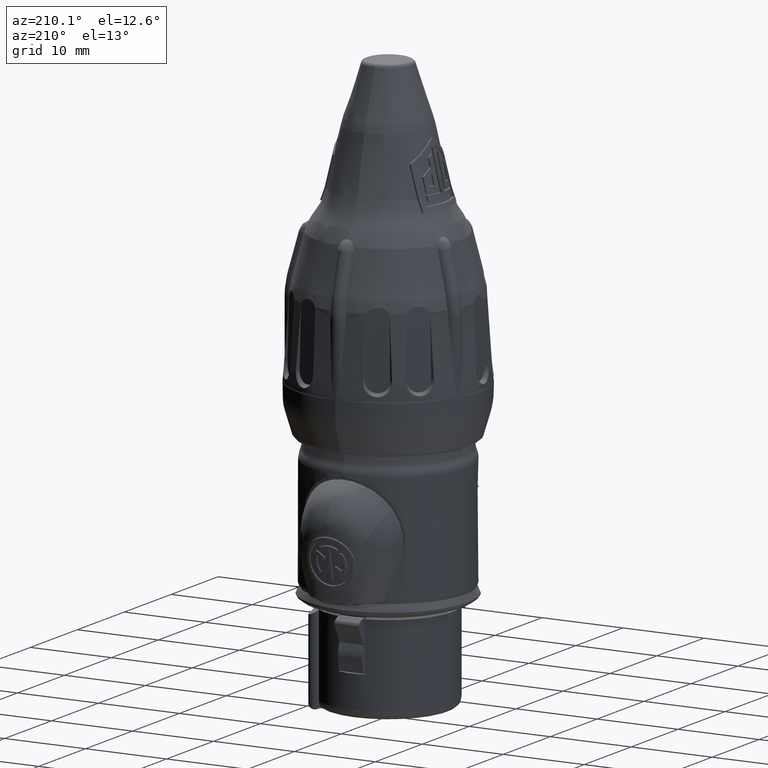
[diagram: clean part render]
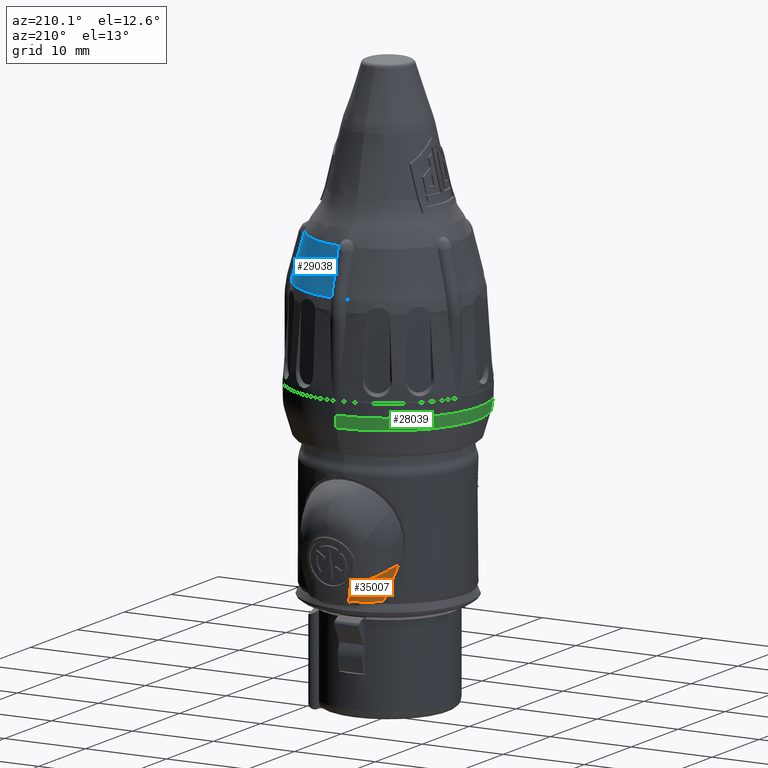
[diagram: same view with three faces highlighted in distinct colors, each labeled with its STEP entity id]
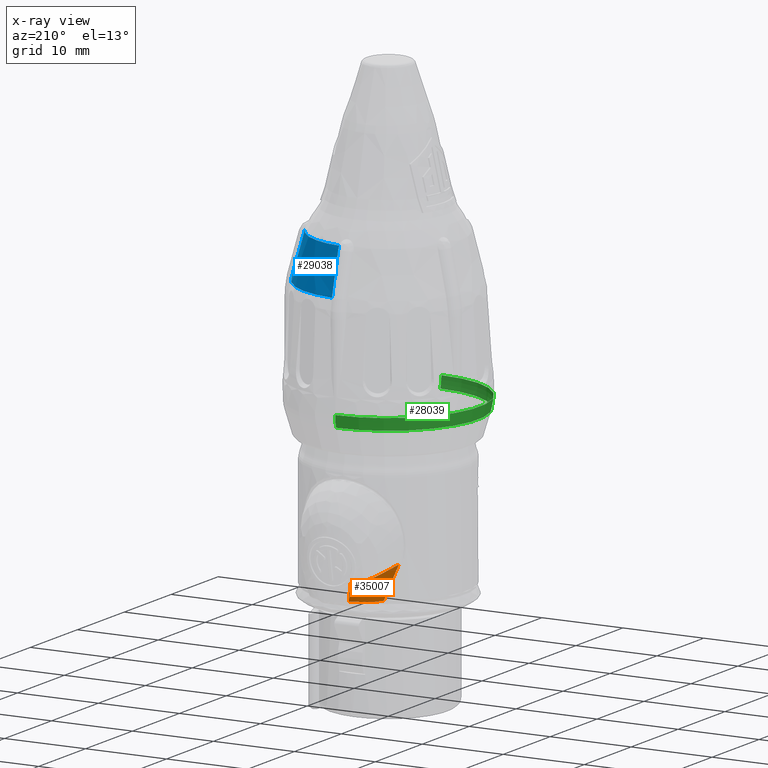
[diagram: x-ray of the same camera — body ghosted, the three highlighted faces saturated]
A machine part, auxiliary view with three faces highlighted in distinct colors.
The next image is the same camera in x-ray (body ghosted, the three faces saturated) — at least one of them is partly hidden behind the body in this view.
Their STEP definitions:

[orange] entity #35007 — the highlighted face is a freeform B-spline surface patch.
#7571=CARTESIAN_POINT('',(-2.232352095925E0,1.187332596422E1,1.796214173332E0));
#7572=CARTESIAN_POINT('',(-2.150181072386E0,1.175705846073E1,1.062305106821E0));
#7573=CARTESIAN_POINT('',(-2.013458731808E0,1.165193932856E1,
3.322874712741E-1));
#7574=CARTESIAN_POINT('',(-1.823413686203E0,1.155397892468E1,
-3.836756787546E-1));
#8485=CARTESIAN_POINT('',(-4.473584168137E0,8.676825806224E0,
-5.161988940454E-1));
#8486=CARTESIAN_POINT('',(-4.472106972484E0,8.681907731398E0,
-5.155038308908E-1));
#8487=CARTESIAN_POINT('',(-4.469098251372E0,8.692117747848E0,
-5.142094253873E-1));
#8488=CARTESIAN_POINT('',(-4.464423676651E0,8.707581358301E0,
-5.125396990245E-1));
#8489=CARTESIAN_POINT('',(-4.461210287261E0,8.717962729783E0,
-5.116026477347E-1));
#8490=CARTESIAN_POINT('',(-4.459579242911E0,8.723173353559E0,
-5.111764139087E-1));
#8492=CARTESIAN_POINT('',(-4.443867990135E0,8.771992840800E0,
-5.081866340088E-1));
#8493=CARTESIAN_POINT('',(-4.445697315311E0,8.766590090868E0,
-5.082874726563E-1));
#8494=CARTESIAN_POINT('',(-4.449301831056E0,8.755770268351E0,
-5.086386254434E-1));
#8495=CARTESIAN_POINT('',(-4.454541504566E0,8.739497716921E0,
-5.096272251677E-1));
#8496=CARTESIAN_POINT('',(-4.457919902777E0,8.728619591622E0,
-5.106048688289E-1));
#8497=CARTESIAN_POINT('',(-4.459579242911E0,8.723173353559E0,
-5.111764139087E-1));
#8499=CARTESIAN_POINT('',(-4.443867990135E0,8.771992840800E0,
-5.081866340088E-1));
#8500=CARTESIAN_POINT('',(-4.405451070784E0,8.885453919760E0,
-5.060688940932E-1));
#8501=CARTESIAN_POINT('',(-4.331639966487E0,9.097800481262E0,
-5.010728945938E-1));
#8502=CARTESIAN_POINT('',(-4.227834860043E0,9.377849434998E0,
-4.919911206103E-1));
#8503=CARTESIAN_POINT('',(-4.130027842512E0,9.622138616068E0,
-4.820243813424E-1));
#8504=CARTESIAN_POINT('',(-4.037440117702E0,9.834221413635E0,
-4.716762494617E-1));
#8505=CARTESIAN_POINT('',(-3.949320893159E0,1.001835273093E1,
-4.612171233858E-1));
#8506=CARTESIAN_POINT('',(-3.863286321121E0,1.018174458222E1,
-4.506251045381E-1));
#8507=CARTESIAN_POINT('',(-3.777789244912E0,1.032877070456E1,
-4.398512625249E-1));
#8508=CARTESIAN_POINT('',(-3.691317157532E0,1.046304499328E1,
-4.287599626615E-1));
#8509=CARTESIAN_POINT('',(-3.601774051005E0,1.058814146062E1,
-4.170853191553E-1));
#8510=CARTESIAN_POINT('',(-3.508183496496E0,1.070514105683E1,
-4.046764283396E-1));
#8511=CARTESIAN_POINT('',(-3.412441445252E0,1.081191769904E1,
-3.917470781908E-1));
#8512=CARTESIAN_POINT('',(-3.314818421230E0,1.090909018066E1,
-3.783350530038E-1));
#8513=CARTESIAN_POINT('',(-3.212911331720E0,1.099951739244E1,
-3.641424161045E-1));
#8514=CARTESIAN_POINT('',(-3.103887019455E0,1.108534254523E1,
-3.488339623992E-1));
#8515=CARTESIAN_POINT('',(-2.986156927069E0,1.116688502995E1,
-3.324109538488E-1));
#8516=CARTESIAN_POINT('',(-2.860664260439E0,1.124274028677E1,
-3.153424298732E-1));
#8517=CARTESIAN_POINT('',(-2.727532686873E0,1.131243368576E1,
-2.982361984828E-1));
#8518=CARTESIAN_POINT('',(-2.633160559639E0,1.135479705600E1,
-2.872339562649E-1));
#8519=CARTESIAN_POINT('',(-2.584554902692E0,1.137489371538E1,
-2.819790099958E-1));
#8521=CARTESIAN_POINT('',(-2.359082717980E0,1.145368894177E1,
-2.766534675386E-1));
#8522=CARTESIAN_POINT('',(-2.367515377804E0,1.145124838011E1,
-2.761115004451E-1));
#8523=CARTESIAN_POINT('',(-2.384375444768E0,1.144626162543E1,
-2.752015843666E-1));
#8524=CARTESIAN_POINT('',(-2.409637796215E0,1.143846319331E1,
-2.743497157179E-1));
#8525=CARTESIAN_POINT('',(-2.434857471462E0,1.143034624306E1,
-2.740015867662E-1));
#8526=CARTESIAN_POINT('',(-2.460021069911E0,1.142191047701E1,
-2.741472982483E-1));
#8527=CARTESIAN_POINT('',(-2.485115610968E0,1.141315580182E1,
-2.747764993792E-1));
#8528=CARTESIAN_POINT('',(-2.510128293301E0,1.140408243672E1,
-2.758784235483E-1));
#8529=CARTESIAN_POINT('',(-2.535048625697E0,1.139469008557E1,
-2.774419011958E-1));
#8530=CARTESIAN_POINT('',(-2.559860519310E0,1.138498097811E1,
-2.794552767833E-1));
#8531=CARTESIAN_POINT('',(-2.576336056595E0,1.137829193288E1,
-2.810905000889E-1));
#8532=CARTESIAN_POINT('',(-2.584554902692E0,1.137489371538E1,
-2.819790099958E-1));
#8534=CARTESIAN_POINT('',(-1.823413686203E0,1.155397892468E1,
-3.836756787546E-1));
#8535=CARTESIAN_POINT('',(-1.845327884264E0,1.155199302422E1,
-3.754472455804E-1));
#8536=CARTESIAN_POINT('',(-1.889619731643E0,1.154750036837E1,
-3.600014593932E-1));
#8537=CARTESIAN_POINT('',(-1.957607597151E0,1.153901616223E1,
-3.394137239284E-1));
#8538=CARTESIAN_POINT('',(-2.025935561020E0,1.152885104432E1,
-3.219166769668E-1));
#8539=CARTESIAN_POINT('',(-2.093871700042E0,1.151705507585E1,
-3.075374622954E-1));
#8540=CARTESIAN_POINT('',(-2.161368572843E0,1.150365081596E1,
-2.959166949184E-1));
#8541=CARTESIAN_POINT('',(-2.228480869385E0,1.148858964099E1,
-2.868786298870E-1));
#8542=CARTESIAN_POINT('',(-2.294573387205E0,1.147198067742E1,
-2.803954574847E-1));
#8543=CARTESIAN_POINT('',(-2.337733858831E0,1.145994332737E1,
-2.776569794972E-1));
#8544=CARTESIAN_POINT('',(-2.359082717980E0,1.145368894177E1,
-2.766534675386E-1));
#8546=CARTESIAN_POINT('',(-5.831870433377E0,7.811297015115E0,3.434612587413E0));
#8547=CARTESIAN_POINT('',(-5.629441890731E0,8.390169566334E0,3.287413632984E0));
#8548=CARTESIAN_POINT('',(-5.236899603121E0,9.434095053581E0,2.958968040027E0));
#8549=CARTESIAN_POINT('',(-4.548737412342E0,1.064431852347E1,2.451985334527E0));
#8550=CARTESIAN_POINT('',(-3.614259157840E0,1.148357860262E1,2.025810897548E0));
#8551=CARTESIAN_POINT('',(-2.742728321069E0,1.178695708824E1,1.849659807152E0));
#8552=CARTESIAN_POINT('',(-2.232352095925E0,1.187332596422E1,1.796214173332E0));
#8554=CARTESIAN_POINT('',(-4.473584168137E0,8.676825806224E0,
-5.161988940454E-1));
#8555=CARTESIAN_POINT('',(-4.505536474405E0,8.660025998109E0,
-4.434686524261E-1));
#8556=CARTESIAN_POINT('',(-4.571455032091E0,8.624906706021E0,
-2.916064316684E-1));
#8557=CARTESIAN_POINT('',(-4.675328535209E0,8.567976834819E0,
-4.557457320979E-2));
#8558=CARTESIAN_POINT('',(-4.784924878353E0,8.506131322672E0,
2.221596195819E-1));
#8559=CARTESIAN_POINT('',(-4.899630154423E0,8.439398139077E0,
5.122005094939E-1));
#8560=CARTESIAN_POINT('',(-5.019312734137E0,8.367406369662E0,
8.264904236870E-1));
#8561=CARTESIAN_POINT('',(-5.143906851273E0,8.289930092966E0,1.167856656004E0));
#8562=CARTESIAN_POINT('',(-5.273340064931E0,8.206640054458E0,1.539822330452E0));
#8563=CARTESIAN_POINT('',(-5.402534877895E0,8.120510706685E0,1.931802761002E0));
#8564=CARTESIAN_POINT('',(-5.518884067368E0,8.040264649390E0,2.305402263607E0));
#8565=CARTESIAN_POINT('',(-5.618251935526E0,7.969649705326E0,2.641850318698E0));
#8566=CARTESIAN_POINT('',(-5.703781208115E0,7.907343647134E0,2.946281000409E0));
#8567=CARTESIAN_POINT('',(-5.775467245383E0,7.854046705474E0,3.213833765743E0));
#8568=CARTESIAN_POINT('',(-5.814385801862E0,7.824608941153E0,3.365390933734E0));
#8569=CARTESIAN_POINT('',(-5.831870433377E0,7.811297015115E0,3.434612587413E0));
#18302=VERTEX_POINT('',#8546);
#18303=VERTEX_POINT('',#8552);
#18339=VERTEX_POINT('',#8485);
#18340=VERTEX_POINT('',#8490);
#18343=VERTEX_POINT('',#8499);
#18344=VERTEX_POINT('',#8519);
#18345=VERTEX_POINT('',#7574);
#18717=VERTEX_POINT('',#8521);
#34957=CARTESIAN_POINT('',(-1.749970098483E0,1.151781793303E1,
-6.499938453895E-1));
#34958=CARTESIAN_POINT('',(-1.887068212164E0,1.158270235860E1,
-1.693979747936E-1));
#34959=CARTESIAN_POINT('',(-2.004009999030E0,1.165028290799E1,
3.165788624434E-1));
#34960=CARTESIAN_POINT('',(-2.100795459195E0,1.172055958155E1,
8.079366659792E-1));
#34961=CARTESIAN_POINT('',(-2.176895394201E0,1.179491402644E1,
1.301146116473E0));
#34962=CARTESIAN_POINT('',(-2.232309803910E0,1.187334624247E1,
1.796207212694E0));
#34963=CARTESIAN_POINT('',(-2.846757564875E0,1.131091857104E1,
-8.757463279028E-1));
#34964=CARTESIAN_POINT('',(-3.093496497564E0,1.135999708644E1,
-3.222655102758E-1));
#34965=CARTESIAN_POINT('',(-3.320044407232E0,1.141167602917E1,
2.394716208536E-1));
#34966=CARTESIAN_POINT('',(-3.526401294019E0,1.146595539958E1,
8.094650651298E-1));
#34967=CARTESIAN_POINT('',(-3.710147160677E0,1.152739814161E1,
1.385584352407E0));
#34968=CARTESIAN_POINT('',(-3.871282006807E0,1.159600425508E1,
1.967829481238E0));
#34969=CARTESIAN_POINT('',(-3.570908524538E0,1.082743057864E1,
-8.961066937924E-1));
#34970=CARTESIAN_POINT('',(-3.881995764163E0,1.081139829551E1,
-2.490684063590E-1));
#34971=CARTESIAN_POINT('',(-4.168917233177E0,1.079406487350E1,
4.076224015499E-1));
#34972=CARTESIAN_POINT('',(-4.431672931985E0,1.077543031293E1,
1.073965729561E0));
#34973=CARTESIAN_POINT('',(-4.668004489745E0,1.076346395661E1,
1.748429972272E0));
#34974=CARTESIAN_POINT('',(-4.877911905935E0,1.075816580458E1,
2.431015127990E0));
#34975=CARTESIAN_POINT('',(-3.978221667724E0,1.004055545730E1,
-7.425169854021E-1));
#34976=CARTESIAN_POINT('',(-4.315273508214E0,9.916453164419E0,
1.411725909326E-2));
#34977=CARTESIAN_POINT('',(-4.620905257243E0,9.783858373387E0,
7.805332382341E-1));
#34978=CARTESIAN_POINT('',(-4.895116915690E0,9.642771084469E0,
1.556730951625E0));
#34979=CARTESIAN_POINT('',(-5.137557285460E0,9.504791638803E0,
2.341125718589E0));
#34980=CARTESIAN_POINT('',(-5.348226366030E0,9.369920036723E0,
3.133717537156E0));
#34981=CARTESIAN_POINT('',(-4.435984797187E0,8.721320558376E0,-6.5E-1));
#34982=CARTESIAN_POINT('',(-4.808000586355E0,8.497448053037E0,
1.894874837963E-1));
#34983=CARTESIAN_POINT('',(-5.143361960867E0,8.258699869494E0,
1.039102866927E0));
#34984=CARTESIAN_POINT('',(-5.442068922010E0,8.005076007937E0,
1.898846148994E0));
#34985=CARTESIAN_POINT('',(-5.705110155574E0,7.751817859227E0,
2.767521449771E0));
#34986=CARTESIAN_POINT('',(-5.932485660993E0,7.498925423993E0,
3.645128767077E0));
#34987=CARTESIAN_POINT('',(-5.E0,6.842925178606E0,-6.5E-1));
#34988=CARTESIAN_POINT('',(-5.422888333036E0,6.533928425026E0,
2.409635538177E-1));
#34989=CARTESIAN_POINT('',(-5.806568454592E0,6.204997108128E0,
1.142830283131E0));
#34990=CARTESIAN_POINT('',(-6.151040366261E0,5.856131228027E0,
2.055600187561E0));
#34991=CARTESIAN_POINT('',(-6.457758448131E0,5.506222771670E0,
2.979056117799E0));
#34992=CARTESIAN_POINT('',(-6.726722699534E0,5.155271739929E0,
3.913198071525E0));
#34993=B_SPLINE_SURFACE_WITH_KNOTS('',5,5,((#34957,#34958,#34959,#34960,#34961,
#34962),(#34963,#34964,#34965,#34966,#34967,#34968),(#34969,#34970,#34971,
#34972,#34973,#34974),(#34975,#34976,#34977,#34978,#34979,#34980),(#34981,
#34982,#34983,#34984,#34985,#34986),(#34987,#34988,#34989,#34990,#34991,
#34992)),.UNSPECIFIED.,.F.,.F.,.F.,(6,6),(6,6),(-5.452613462308E-6,1.E0),(0.E0,
1.367602496604E-1),.UNSPECIFIED.);
#34994=ORIENTED_EDGE('',*,*,#33389,.T.);
#34995=ORIENTED_EDGE('',*,*,#33431,.F.);
#34996=ORIENTED_EDGE('',*,*,#33532,.T.);
#34998=ORIENTED_EDGE('',*,*,#34997,.F.);
#35000=ORIENTED_EDGE('',*,*,#34999,.F.);
#35001=ORIENTED_EDGE('',*,*,#33754,.F.);
#35003=ORIENTED_EDGE('',*,*,#35002,.F.);
#35004=ORIENTED_EDGE('',*,*,#34940,.F.);
#35005=EDGE_LOOP('',(#34994,#34995,#34996,#34998,#35000,#35001,#35003,#35004));
#35006=FACE_OUTER_BOUND('',#35005,.F.);
#7575=B_SPLINE_CURVE_WITH_KNOTS('',3,(#7571,#7572,#7573,#7574),.UNSPECIFIED.,
.F.,.F.,(4,4),(0.E0,1.E0),.UNSPECIFIED.);
#8491=B_SPLINE_CURVE_WITH_KNOTS('',3,(#8485,#8486,#8487,#8488,#8489,#8490),
.UNSPECIFIED.,.F.,.F.,(4,1,1,4),(0.E0,3.333333333333E-1,6.666666666667E-1,1.E0),
.UNSPECIFIED.);
#8498=B_SPLINE_CURVE_WITH_KNOTS('',3,(#8492,#8493,#8494,#8495,#8496,#8497),
.UNSPECIFIED.,.F.,.F.,(4,1,1,4),(0.E0,3.333333333333E-1,6.666666666667E-1,1.E0),
.UNSPECIFIED.);
#8520=B_SPLINE_CURVE_WITH_KNOTS('',3,(#8499,#8500,#8501,#8502,#8503,#8504,#8505,
#8506,#8507,#8508,#8509,#8510,#8511,#8512,#8513,#8514,#8515,#8516,#8517,#8518,
#8519),.UNSPECIFIED.,.F.,.F.,(4,1,1,1,1,1,1,1,1,1,1,1,1,1,1,1,1,1,4),(0.E0,
5.555555555556E-2,1.111111111111E-1,1.666666666667E-1,2.222222222222E-1,
2.777777777778E-1,3.333333333333E-1,3.888888888889E-1,4.444444444444E-1,5.E-1,
5.555555555556E-1,6.111111111111E-1,6.666666666667E-1,7.222222222222E-1,
7.777777777778E-1,8.333333333333E-1,8.888888888889E-1,9.444444444444E-1,1.E0),
.UNSPECIFIED.);
#8533=B_SPLINE_CURVE_WITH_KNOTS('',3,(#8521,#8522,#8523,#8524,#8525,#8526,#8527,
#8528,#8529,#8530,#8531,#8532),.UNSPECIFIED.,.F.,.F.,(4,1,1,1,1,1,1,1,1,4),
(0.E0,1.111111111111E-1,2.222222222222E-1,3.333333333333E-1,4.444444444444E-1,
5.555555555556E-1,6.666666666667E-1,7.777777777778E-1,8.888888888889E-1,1.E0),
.UNSPECIFIED.);
#8545=B_SPLINE_CURVE_WITH_KNOTS('',3,(#8534,#8535,#8536,#8537,#8538,#8539,#8540,
#8541,#8542,#8543,#8544),.UNSPECIFIED.,.F.,.F.,(4,1,1,1,1,1,1,1,4),(0.E0,
1.25E-1,2.5E-1,3.75E-1,5.E-1,6.25E-1,7.5E-1,8.75E-1,1.E0),.UNSPECIFIED.);
#8553=B_SPLINE_CURVE_WITH_KNOTS('',3,(#8546,#8547,#8548,#8549,#8550,#8551,
#8552),.UNSPECIFIED.,.F.,.F.,(4,1,1,1,4),(0.E0,2.5E-1,5.E-1,7.5E-1,1.E0),
.UNSPECIFIED.);
#8570=B_SPLINE_CURVE_WITH_KNOTS('',3,(#8554,#8555,#8556,#8557,#8558,#8559,#8560,
#8561,#8562,#8563,#8564,#8565,#8566,#8567,#8568,#8569),.UNSPECIFIED.,.F.,.F.,(4,
1,1,1,1,1,1,1,1,1,1,1,1,4),(0.E0,7.692307692308E-2,1.538461538462E-1,
2.307692307692E-1,3.076923076923E-1,3.846153846154E-1,4.615384615385E-1,
5.384615384615E-1,6.153846153846E-1,6.923076923077E-1,7.692307692308E-1,
8.461538461538E-1,9.230769230769E-1,1.E0),.UNSPECIFIED.);
#33389=EDGE_CURVE('',#18339,#18340,#8491,.T.);
#33431=EDGE_CURVE('',#18343,#18340,#8498,.T.);
#33532=EDGE_CURVE('',#18343,#18344,#8520,.T.);
#33754=EDGE_CURVE('',#18303,#18345,#7575,.T.);
#34940=EDGE_CURVE('',#18339,#18302,#8570,.T.);
#34997=EDGE_CURVE('',#18717,#18344,#8533,.T.);
#34999=EDGE_CURVE('',#18345,#18717,#8545,.T.);
#35002=EDGE_CURVE('',#18302,#18303,#8553,.T.);
#35007=ADVANCED_FACE('',(#35006),#34993,.T.);

[blue] entity #29038 — the highlighted conical surface has half-angle 15 deg.
#5004=CARTESIAN_POINT('',(9.546114819506E0,4.109178109281E0,3.238706338023E1));
#5006=CARTESIAN_POINT('',(9.581489079675E-1,1.034870057307E1,3.238706338023E1));
#5162=CARTESIAN_POINT('',(0.E0,0.E0,3.781898627090E1));
#5163=DIRECTION('',(0.E0,0.E0,-1.E0));
#5164=DIRECTION('',(1.013091140369E-1,9.948549961743E-1,0.E0));
#5165=AXIS2_PLACEMENT_3D('',#5162,#5163,#5164);
#5167=CARTESIAN_POINT('',(9.053835889135E-1,8.891505567486E0,3.781898627090E1));
#5168=CARTESIAN_POINT('',(9.199654287646E-1,8.904584942393E0,3.776491126281E1));
#5169=CARTESIAN_POINT('',(9.420230838136E-1,8.931442366834E0,3.765665991908E1));
#5170=CARTESIAN_POINT('',(9.588565317498E-1,8.974333941755E0,3.749082597689E1));
#5171=CARTESIAN_POINT('',(9.617837276068E-1,9.001884484818E0,3.738742720647E1));
#5172=CARTESIAN_POINT('',(9.617618729603E-1,9.015555566205E0,3.733670254909E1));
#5174=CARTESIAN_POINT('',(9.617618729603E-1,9.015555566205E0,3.733670254909E1));
#5175=CARTESIAN_POINT('',(9.615436820148E-1,9.152043986676E0,3.683028113521E1));
#5176=CARTESIAN_POINT('',(9.611231460385E-1,9.426486052239E0,3.581172828899E1));
#5177=CARTESIAN_POINT('',(9.605352127676E-1,9.842564994414E0,3.426677439394E1));
#5178=CARTESIAN_POINT('',(9.601691153926E-1,1.012290636247E1,3.322539183384E1));
#5179=CARTESIAN_POINT('',(9.599919324670E-1,1.026381838415E1,3.270184789713E1));
#5181=CARTESIAN_POINT('',(9.599919324670E-1,1.026381838415E1,3.270184789713E1));
#5182=CARTESIAN_POINT('',(9.599741326858E-1,1.027797439348E1,3.264925271921E1));
#5183=CARTESIAN_POINT('',(9.596522069798E-1,1.030627739907E1,3.254419344822E1));
#5184=CARTESIAN_POINT('',(9.587509076319E-1,1.033456230560E1,3.243939627311E1));
#5185=CARTESIAN_POINT('',(9.581489079675E-1,1.034870057307E1,3.238706338023E1));
#5187=CARTESIAN_POINT('',(0.E0,0.E0,3.238706338023E1));
#5188=DIRECTION('',(0.E0,0.E0,-1.E0));
#5189=DIRECTION('',(9.219209458277E-2,9.957412403313E-1,0.E0));
#5190=AXIS2_PLACEMENT_3D('',#5187,#5188,#5189);
#5192=CARTESIAN_POINT('',(9.546114819506E0,4.109178109281E0,3.238706338023E1));
#5193=CARTESIAN_POINT('',(9.532482499966E0,4.105381680064E0,3.243939627311E1));
#5194=CARTESIAN_POINT('',(9.505303438489E0,4.097498349881E0,3.254419344822E1));
#5195=CARTESIAN_POINT('',(9.478286200071E0,4.089058409701E0,3.264925271921E1));
#5196=CARTESIAN_POINT('',(9.464817534719E0,4.084700890843E0,3.270184789713E1));
#5198=CARTESIAN_POINT('',(9.464817534719E0,4.084700890843E0,3.270184789713E1));
#5199=CARTESIAN_POINT('',(9.330747485738E0,4.041325192408E0,3.322539183384E1));
#5200=CARTESIAN_POINT('',(9.064013870555E0,3.955043124747E0,3.426677439394E1));
#5201=CARTESIAN_POINT('',(8.668117599935E0,3.827026818382E0,3.581172828899E1));
#5202=CARTESIAN_POINT('',(8.406977732371E0,3.742619509633E0,3.683028113521E1));
#5203=CARTESIAN_POINT('',(8.277102105973E0,3.700649780092E0,3.733670254909E1));
#5205=CARTESIAN_POINT('',(8.277102105973E0,3.700649780092E0,3.733670254909E1));
#5206=CARTESIAN_POINT('',(8.263540095738E0,3.696267172536E0,3.738958462242E1));
#5207=CARTESIAN_POINT('',(8.237643636448E0,3.684436998299E0,3.749583546556E1));
#5208=CARTESIAN_POINT('',(8.202826166935E0,3.655337573040E0,3.765878395498E1));
#5209=CARTESIAN_POINT('',(8.184353598206E0,3.626304136867E0,3.776579467316E1));
#5210=CARTESIAN_POINT('',(8.176550012379E0,3.608686823697E0,3.781898627090E1));
#20198=CARTESIAN_POINT('',(9.599919324670E-1,1.026381838415E1,
3.270184789713E1));
#20200=VERTEX_POINT('',#20198);
#20204=CARTESIAN_POINT('',(9.617618729603E-1,9.015555566205E0,
3.733670254909E1));
#20206=VERTEX_POINT('',#20204);
#20249=CARTESIAN_POINT('',(9.464817534719E0,4.084700890843E0,3.270184789713E1));
#20251=VERTEX_POINT('',#20249);
#20253=CARTESIAN_POINT('',(8.277102105973E0,3.700649780092E0,3.733670254909E1));
#20255=VERTEX_POINT('',#20253);
#20546=VERTEX_POINT('',#5006);
#20553=VERTEX_POINT('',#5004);
#20571=CARTESIAN_POINT('',(9.054484183251E-1,8.891498966426E0,
3.781898627090E1));
#20572=CARTESIAN_POINT('',(8.176519082859E0,3.608756904510E0,3.781898627090E1));
#20573=VERTEX_POINT('',#20571);
#20574=VERTEX_POINT('',#20572);
#29017=CARTESIAN_POINT('',(0.E0,0.E0,3.510302482557E1));
#29018=DIRECTION('',(0.E0,0.E0,-1.E0));
#29019=DIRECTION('',(0.E0,1.E0,0.E0));
#29020=AXIS2_PLACEMENT_3D('',#29017,#29018,#29019);
#29021=CONICAL_SURFACE('',#29020,9.665222023246E0,1.5E1);
#29023=ORIENTED_EDGE('',*,*,#29022,.F.);
#29025=ORIENTED_EDGE('',*,*,#29024,.T.);
#29027=ORIENTED_EDGE('',*,*,#29026,.T.);
#29028=ORIENTED_EDGE('',*,*,#28949,.T.);
#29029=ORIENTED_EDGE('',*,*,#28705,.T.);
#29031=ORIENTED_EDGE('',*,*,#29030,.T.);
#29033=ORIENTED_EDGE('',*,*,#29032,.T.);
#29035=ORIENTED_EDGE('',*,*,#29034,.T.);
#29036=EDGE_LOOP('',(#29023,#29025,#29027,#29028,#29029,#29031,#29033,#29035));
#29037=FACE_OUTER_BOUND('',#29036,.F.);
#5166=CIRCLE('',#5165,8.937482347294E0);
#5173=B_SPLINE_CURVE_WITH_KNOTS('',3,(#5167,#5168,#5169,#5170,#5171,#5172),
.UNSPECIFIED.,.F.,.F.,(4,1,1,4),(0.E0,3.333333333333E-1,6.666666666667E-1,1.E0),
.UNSPECIFIED.);
#5180=B_SPLINE_CURVE_WITH_KNOTS('',3,(#5174,#5175,#5176,#5177,#5178,#5179),
.UNSPECIFIED.,.F.,.F.,(4,1,1,4),(0.E0,3.333333333333E-1,6.666666666667E-1,1.E0),
.UNSPECIFIED.);
#5186=B_SPLINE_CURVE_WITH_KNOTS('',3,(#5181,#5182,#5183,#5184,#5185),
.UNSPECIFIED.,.F.,.F.,(4,1,4),(0.E0,5.E-1,1.E0),.UNSPECIFIED.);
#5191=CIRCLE('',#5190,1.039296169920E1);
#5197=B_SPLINE_CURVE_WITH_KNOTS('',3,(#5192,#5193,#5194,#5195,#5196),
.UNSPECIFIED.,.F.,.F.,(4,1,4),(0.E0,5.E-1,1.E0),.UNSPECIFIED.);
#5204=B_SPLINE_CURVE_WITH_KNOTS('',3,(#5198,#5199,#5200,#5201,#5202,#5203),
.UNSPECIFIED.,.F.,.F.,(4,1,1,4),(0.E0,3.333333333333E-1,6.666666666667E-1,1.E0),
.UNSPECIFIED.);
#5211=B_SPLINE_CURVE_WITH_KNOTS('',3,(#5205,#5206,#5207,#5208,#5209,#5210),
.UNSPECIFIED.,.F.,.F.,(4,1,1,4),(0.E0,3.333333333333E-1,6.666666666667E-1,1.E0),
.UNSPECIFIED.);
#28705=EDGE_CURVE('',#20546,#20553,#5191,.T.);
#28949=EDGE_CURVE('',#20200,#20546,#5186,.T.);
#29022=EDGE_CURVE('',#20573,#20574,#5166,.T.);
#29024=EDGE_CURVE('',#20573,#20206,#5173,.T.);
#29026=EDGE_CURVE('',#20206,#20200,#5180,.T.);
#29030=EDGE_CURVE('',#20553,#20251,#5197,.T.);
#29032=EDGE_CURVE('',#20251,#20255,#5204,.T.);
#29034=EDGE_CURVE('',#20255,#20574,#5211,.T.);
#29038=ADVANCED_FACE('',(#29037),#29021,.T.);

[green] entity #28039 — the highlighted toroidal blend (fillet) surface has major radius 6.3 mm and minor (blend) radius 5 mm.
#3827=CARTESIAN_POINT('',(0.E0,0.E0,1.839796752008E1));
#3828=DIRECTION('',(0.E0,0.E0,1.E0));
#3829=DIRECTION('',(0.E0,1.E0,0.E0));
#3830=AXIS2_PLACEMENT_3D('',#3827,#3828,#3829);
#3845=CARTESIAN_POINT('',(-5.485892434664E-10,-6.3E0,1.983285863480E1));
#3846=DIRECTION('',(1.E0,-8.707765758453E-11,0.E0));
#3847=DIRECTION('',(-8.707765758453E-11,-1.E0,-2.195577053499E-13));
#3848=AXIS2_PLACEMENT_3D('',#3845,#3846,#3847);
#3878=CARTESIAN_POINT('',(0.E0,0.E0,1.983285863480E1));
#3879=DIRECTION('',(0.E0,0.E0,1.E0));
#3880=DIRECTION('',(0.E0,1.E0,0.E0));
#3881=AXIS2_PLACEMENT_3D('',#3878,#3879,#3880);
#3898=CARTESIAN_POINT('',(5.485899928870E-10,6.3E0,1.983285863480E1));
#3899=DIRECTION('',(-1.E0,8.707777381101E-11,0.E0));
#3900=DIRECTION('',(8.707777381101E-11,1.E0,-2.202682480856E-13));
#3901=AXIS2_PLACEMENT_3D('',#3898,#3899,#3900);
#20167=CARTESIAN_POINT('',(5.125454325127E-11,1.108968553131E1,
1.839796752007E1));
#20168=VERTEX_POINT('',#20167);
#20169=CARTESIAN_POINT('',(-5.125414125752E-11,-1.108968553131E1,
1.839796752007E1));
#20170=VERTEX_POINT('',#20169);
#20171=CARTESIAN_POINT('',(0.E0,-1.13E1,1.983285863480E1));
#20172=CARTESIAN_POINT('',(0.E0,1.13E1,1.983285863480E1));
#20173=VERTEX_POINT('',#20171);
#20174=VERTEX_POINT('',#20172);
#28028=CARTESIAN_POINT('',(0.E0,0.E0,1.983285863480E1));
#28029=DIRECTION('',(0.E0,0.E0,1.E0));
#28030=DIRECTION('',(1.242216001434E-2,9.999228419936E-1,0.E0));
#28031=AXIS2_PLACEMENT_3D('',#28028,#28029,#28030);
#28032=TOROIDAL_SURFACE('',#28031,6.3E0,5.E0);
#28033=ORIENTED_EDGE('',*,*,#28008,.T.);
#28034=ORIENTED_EDGE('',*,*,#27965,.T.);
#28035=ORIENTED_EDGE('',*,*,#27920,.F.);
#28036=ORIENTED_EDGE('',*,*,#27962,.F.);
#28037=EDGE_LOOP('',(#28033,#28034,#28035,#28036));
#28038=FACE_OUTER_BOUND('',#28037,.F.);
#3831=CIRCLE('',#3830,1.108968553131E1);
#3849=CIRCLE('',#3848,5.E0);
#3882=CIRCLE('',#3881,1.13E1);
#3902=CIRCLE('',#3901,5.E0);
#27920=EDGE_CURVE('',#20168,#20170,#3831,.T.);
#27962=EDGE_CURVE('',#20174,#20168,#3902,.T.);
#27965=EDGE_CURVE('',#20173,#20170,#3849,.T.);
#28008=EDGE_CURVE('',#20174,#20173,#3882,.T.);
#28039=ADVANCED_FACE('',(#28038),#28032,.T.);